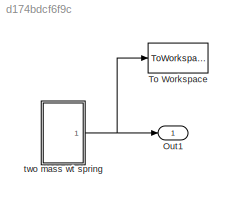
MODEL slx_d174bdcf6f9c
KIND model
CONFIG AbsTol = auto
CONFIG EnableMultiTasking = off
CONFIG FixedStep = auto
CONFIG MaxStep = auto
CONFIG MinStep = auto
CONFIG RelTol = 1e-3
CONFIG SampleTimeConstraint = Unconstrained
CONFIG Solver = VariableStepAuto
CONFIG SolverName = VariableStepAuto
CONFIG StartTime = 0.0
CONFIG StopTime = 100.0
BLOCK [Outport] Out1
  IconDisplay = Port number
BLOCK [ToWorkspace] To Workspace
  FixptAsFi = on
  MaxDataPoints = inf
  Ports = [1]
  SampleTime = -1
  Save2DSignal = 3-D array (concatenate along third dimension)
  SaveFormat = Timeseries
  VariableName = simout
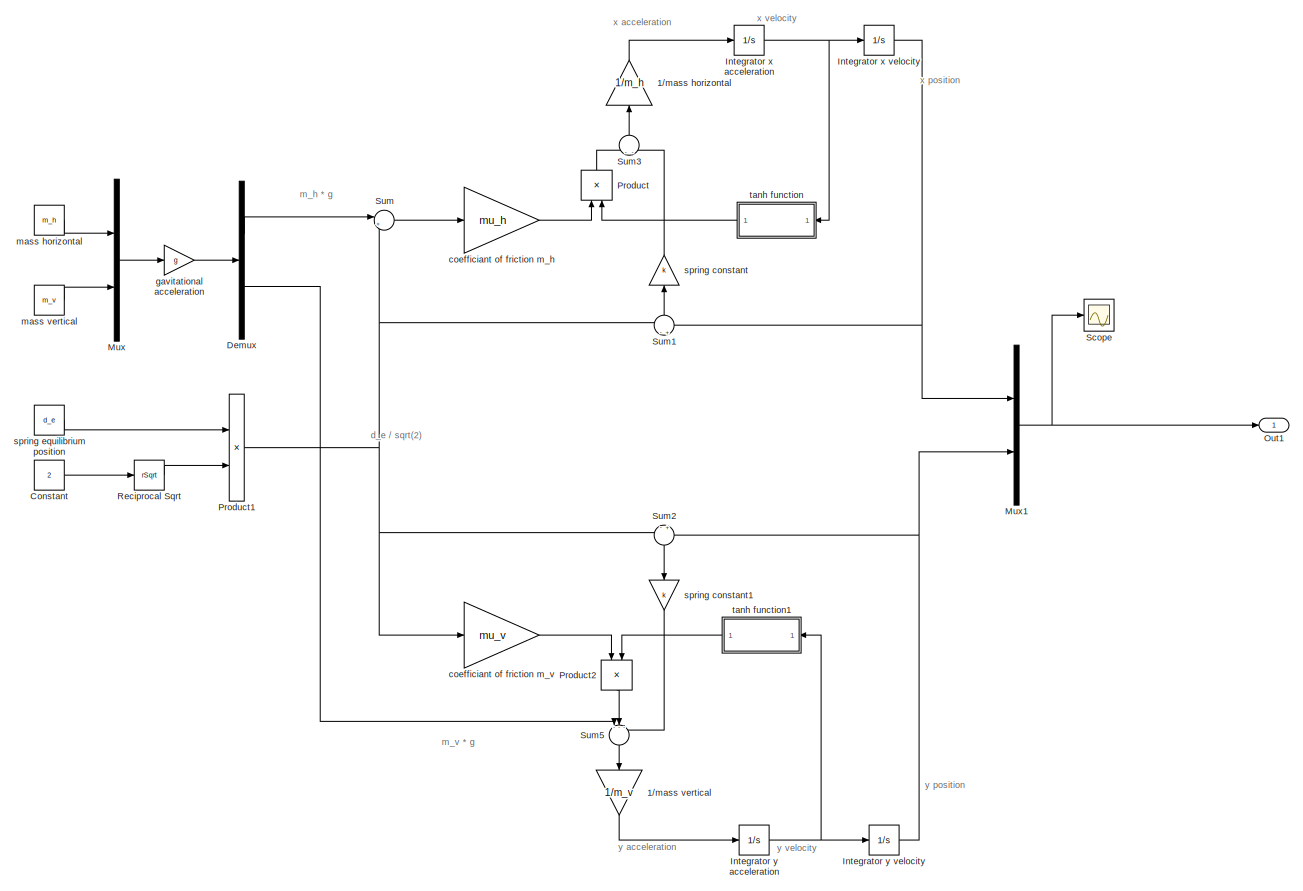
[diagram: two mass wt spring - part 1/1, most of the canvas]
BLOCK [SubSystem] two mass wt spring
  Ports = [0, 1]
  RequestExecContextInheritance = off
  Variant = off
BLOCK [Gain] two mass wt spring/ spring constant
  Gain = k
  OutDataTypeStr = Inherit: Inherit via internal rule
  ParamDataTypeStr = Inherit: Inherit via internal rule
  SaturateOnIntegerOverflow = off
BLOCK [Gain] two mass wt spring/ spring constant1
  Gain = k
  OutDataTypeStr = Inherit: Inherit via internal rule
  ParamDataTypeStr = Inherit: Inherit via internal rule
  SaturateOnIntegerOverflow = off
BLOCK [Gain] two mass wt spring/1//mass horizontal
  Gain = 1/m_h
  OutDataTypeStr = Inherit: Inherit via internal rule
  ParamDataTypeStr = Inherit: Inherit via internal rule
  SaturateOnIntegerOverflow = off
BLOCK [Gain] two mass wt spring/1//mass vertical
  Gain = 1/m_v
  OutDataTypeStr = Inherit: Inherit via internal rule
  ParamDataTypeStr = Inherit: Inherit via internal rule
  SaturateOnIntegerOverflow = off
BLOCK [Constant] two mass wt spring/Constant
  Value = 2
BLOCK [Demux] two mass wt spring/Demux
  DisplayOption = bar
  Outputs = 2
  Ports = [1, 2]
BLOCK [Integrator] two mass wt spring/Integrator x acceleration
  Ports = [1, 1]
BLOCK [Integrator] two mass wt spring/Integrator x velocity
  Ports = [1, 1]
BLOCK [Integrator] two mass wt spring/Integrator y acceleration
  Ports = [1, 1]
BLOCK [Integrator] two mass wt spring/Integrator y velocity
  Ports = [1, 1]
BLOCK [Mux] two mass wt spring/Mux
  DisplayOption = bar
  Inputs = 2
  Ports = [2, 1]
BLOCK [Mux] two mass wt spring/Mux1
  DisplayOption = bar
  Inputs = 2
  Ports = [2, 1]
BLOCK [Outport] two mass wt spring/Out1
  IconDisplay = Port number
BLOCK [Product] two mass wt spring/Product
  InputSameDT = off
  OutDataTypeStr = Inherit: Inherit via internal rule
  Ports = [2, 1]
  RndMeth = Floor
  SaturateOnIntegerOverflow = off
BLOCK [Product] two mass wt spring/Product1
  InputSameDT = off
  OutDataTypeStr = Inherit: Inherit via internal rule
  Ports = [2, 1]
  RndMeth = Floor
  SaturateOnIntegerOverflow = off
BLOCK [Product] two mass wt spring/Product2
  InputSameDT = off
  OutDataTypeStr = Inherit: Inherit via internal rule
  Ports = [2, 1]
  RndMeth = Floor
  SaturateOnIntegerOverflow = off
BLOCK [Sqrt] two mass wt spring/Reciprocal Sqrt
  Operator = rSqrt
BLOCK [Scope] two mass wt spring/Scope
  NumInputPorts = 1
  Ports = [1]
  ScopeSpecificationString = Simulink.scopes.TimeScopeBlockCfg('CurrentConfiguration', extmgr.ConfigurationSet(extmgr.Configuration('Core','General UI',true),extmgr.Configuration('Core','Source UI',true),extmgr.Configuration('Sources','WiredSimulink',true,'DataLoggingLimitDataPoints',true,'DataLoggingSaveFormat','Array','DataLoggingDecimation','1','DataLoggingDecimateData',true),extmgr.Configuration('Visuals','Time Domain',tr...<+1519ch>
BLOCK [Sum] two mass wt spring/Sum
  IconShape = round
  InputSameDT = off
  Inputs = |++
  OutDataTypeStr = Inherit: Inherit via internal rule
  Ports = [2, 1]
  SaturateOnIntegerOverflow = off
BLOCK [Sum] two mass wt spring/Sum1
  IconShape = round
  InputSameDT = off
  Inputs = -+
  OutDataTypeStr = Inherit: Inherit via internal rule
  Ports = [2, 1]
  SaturateOnIntegerOverflow = off
BLOCK [Sum] two mass wt spring/Sum2
  IconShape = round
  InputSameDT = off
  Inputs = -+
  OutDataTypeStr = Inherit: Inherit via internal rule
  Ports = [2, 1]
  SaturateOnIntegerOverflow = off
BLOCK [Sum] two mass wt spring/Sum3
  IconShape = round
  InputSameDT = off
  Inputs = --
  OutDataTypeStr = Inherit: Inherit via internal rule
  Ports = [2, 1]
  SaturateOnIntegerOverflow = off
BLOCK [Sum] two mass wt spring/Sum5
  IconShape = round
  InputSameDT = off
  Inputs = ---
  OutDataTypeStr = Inherit: Inherit via internal rule
  Ports = [3, 1]
  SaturateOnIntegerOverflow = off
BLOCK [Gain] two mass wt spring/coefficiant of friction m_h 
  Gain = mu_h
  OutDataTypeStr = Inherit: Inherit via internal rule
  ParamDataTypeStr = Inherit: Inherit via internal rule
  SaturateOnIntegerOverflow = off
BLOCK [Gain] two mass wt spring/coefficiant of friction m_v
  Gain = mu_v
  OutDataTypeStr = Inherit: Inherit via internal rule
  ParamDataTypeStr = Inherit: Inherit via internal rule
  SaturateOnIntegerOverflow = off
BLOCK [Gain] two mass wt spring/gavitational acceleration
  Gain = g
  OutDataTypeStr = Inherit: Inherit via internal rule
  ParamDataTypeStr = Inherit: Inherit via internal rule
  SaturateOnIntegerOverflow = off
BLOCK [Constant] two mass wt spring/mass horizontal 
  Value = m_h
BLOCK [Constant] two mass wt spring/mass vertical
  Value = m_v
BLOCK [Constant] two mass wt spring/spring equilibrium position
  Value = d_e
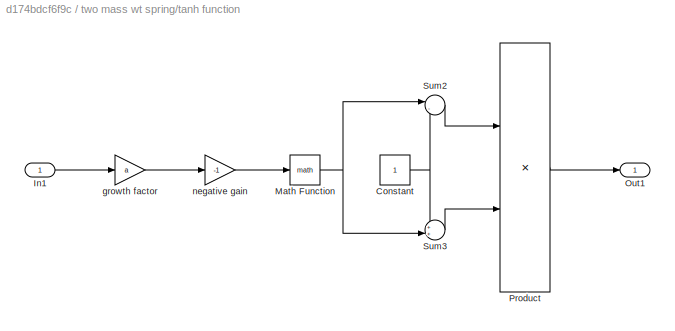
BLOCK [SubSystem] two mass wt spring/tanh function
  Ports = [1, 1]
  RequestExecContextInheritance = off
  Variant = off
BLOCK [Constant] two mass wt spring/tanh function/Constant
BLOCK [Inport] two mass wt spring/tanh function/In1
  IconDisplay = Port number
BLOCK [Math] two mass wt spring/tanh function/Math Function
  Ports = [1, 1]
BLOCK [Outport] two mass wt spring/tanh function/Out1
  IconDisplay = Port number
BLOCK [Product] two mass wt spring/tanh function/Product
  InputSameDT = off
  Inputs = */
  OutDataTypeStr = Inherit: Inherit via internal rule
  Ports = [2, 1]
  RndMeth = Floor
  SaturateOnIntegerOverflow = off
BLOCK [Sum] two mass wt spring/tanh function/Sum2
  IconShape = round
  InputSameDT = off
  Inputs = |-+
  OutDataTypeStr = Inherit: Inherit via internal rule
  Ports = [2, 1]
  SaturateOnIntegerOverflow = off
BLOCK [Sum] two mass wt spring/tanh function/Sum3
  IconShape = round
  InputSameDT = off
  Inputs = ++|
  OutDataTypeStr = Inherit: Inherit via internal rule
  Ports = [2, 1]
  SaturateOnIntegerOverflow = off
BLOCK [Gain] two mass wt spring/tanh function/growth factor
  Gain = a
  OutDataTypeStr = Inherit: Inherit via internal rule
  ParamDataTypeStr = Inherit: Inherit via internal rule
  SaturateOnIntegerOverflow = off
BLOCK [Gain] two mass wt spring/tanh function/negative gain
  Gain = -1
  OutDataTypeStr = Inherit: Inherit via internal rule
  ParamDataTypeStr = Inherit: Inherit via internal rule
  SaturateOnIntegerOverflow = off
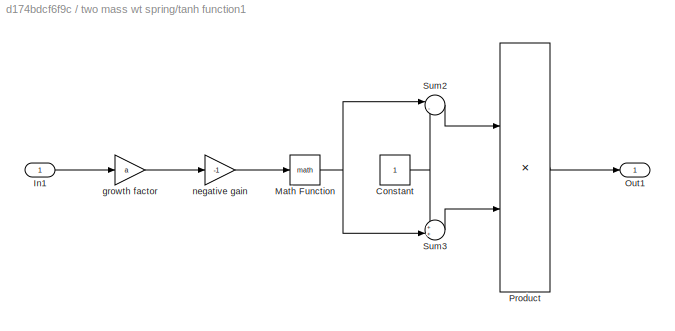
BLOCK [SubSystem] two mass wt spring/tanh function1
  Ports = [1, 1]
  RequestExecContextInheritance = off
  Variant = off
BLOCK [Constant] two mass wt spring/tanh function1/Constant
BLOCK [Inport] two mass wt spring/tanh function1/In1
  IconDisplay = Port number
BLOCK [Math] two mass wt spring/tanh function1/Math Function
  Ports = [1, 1]
BLOCK [Outport] two mass wt spring/tanh function1/Out1
  IconDisplay = Port number
BLOCK [Product] two mass wt spring/tanh function1/Product
  InputSameDT = off
  Inputs = */
  OutDataTypeStr = Inherit: Inherit via internal rule
  Ports = [2, 1]
  RndMeth = Floor
  SaturateOnIntegerOverflow = off
BLOCK [Sum] two mass wt spring/tanh function1/Sum2
  IconShape = round
  InputSameDT = off
  Inputs = |-+
  OutDataTypeStr = Inherit: Inherit via internal rule
  Ports = [2, 1]
  SaturateOnIntegerOverflow = off
BLOCK [Sum] two mass wt spring/tanh function1/Sum3
  IconShape = round
  InputSameDT = off
  Inputs = ++|
  OutDataTypeStr = Inherit: Inherit via internal rule
  Ports = [2, 1]
  SaturateOnIntegerOverflow = off
BLOCK [Gain] two mass wt spring/tanh function1/growth factor
  Gain = a
  OutDataTypeStr = Inherit: Inherit via internal rule
  ParamDataTypeStr = Inherit: Inherit via internal rule
  SaturateOnIntegerOverflow = off
BLOCK [Gain] two mass wt spring/tanh function1/negative gain
  Gain = -1
  OutDataTypeStr = Inherit: Inherit via internal rule
  ParamDataTypeStr = Inherit: Inherit via internal rule
  SaturateOnIntegerOverflow = off
ANNOTATION two mass wt spring: d_e / sqrt(2)
ANNOTATION two mass wt spring: m_h * g
ANNOTATION two mass wt spring: m_v * g
ANNOTATION two mass wt spring: x acceleration
ANNOTATION two mass wt spring: x position
ANNOTATION two mass wt spring: x velocity
ANNOTATION two mass wt spring: y acceleration
ANNOTATION two mass wt spring: y position
ANNOTATION two mass wt spring: y velocity
LINE two mass wt spring/ spring constant1:1 -> two mass wt spring/Sum5:3
LINE two mass wt spring/ spring constant:1 -> two mass wt spring/Sum3:2
LINE two mass wt spring/1//mass horizontal:1 -> two mass wt spring/Integrator x acceleration:1
LINE two mass wt spring/1//mass vertical:1 -> two mass wt spring/Integrator y acceleration:1
LINE two mass wt spring/Constant:1 -> two mass wt spring/Reciprocal Sqrt:1
LINE two mass wt spring/Demux:1 -> two mass wt spring/Sum:1
LINE two mass wt spring/Demux:2 -> two mass wt spring/Sum5:1
NET two mass wt spring/Integrator x acceleration:1 -> two mass wt spring/Integrator x velocity:1, two mass wt spring/tanh function:1
NET two mass wt spring/Integrator x velocity:1 -> two mass wt spring/Mux1:1, two mass wt spring/Sum1:2
NET two mass wt spring/Integrator y acceleration:1 -> two mass wt spring/Integrator y velocity:1, two mass wt spring/tanh function1:1
NET two mass wt spring/Integrator y velocity:1 -> two mass wt spring/Mux1:2, two mass wt spring/Sum2:2
NET two mass wt spring/Mux1:1 -> two mass wt spring/Out1:1, two mass wt spring/Scope:1
LINE two mass wt spring/Mux:1 -> two mass wt spring/gavitational acceleration:1
NET two mass wt spring/Product1:1 -> two mass wt spring/Sum1:1, two mass wt spring/Sum2:1, two mass wt spring/Sum:2, two mass wt spring/coefficiant of friction m_v:1
LINE two mass wt spring/Product2:1 -> two mass wt spring/Sum5:2
LINE two mass wt spring/Product:1 -> two mass wt spring/Sum3:1
LINE two mass wt spring/Reciprocal Sqrt:1 -> two mass wt spring/Product1:2
LINE two mass wt spring/Sum1:1 -> two mass wt spring/ spring constant:1
LINE two mass wt spring/Sum2:1 -> two mass wt spring/ spring constant1:1
LINE two mass wt spring/Sum3:1 -> two mass wt spring/1//mass horizontal:1
LINE two mass wt spring/Sum5:1 -> two mass wt spring/1//mass vertical:1
LINE two mass wt spring/Sum:1 -> two mass wt spring/coefficiant of friction m_h :1
LINE two mass wt spring/coefficiant of friction m_h :1 -> two mass wt spring/Product:1
LINE two mass wt spring/coefficiant of friction m_v:1 -> two mass wt spring/Product2:1
LINE two mass wt spring/gavitational acceleration:1 -> two mass wt spring/Demux:1
LINE two mass wt spring/mass horizontal :1 -> two mass wt spring/Mux:1
LINE two mass wt spring/mass vertical:1 -> two mass wt spring/Mux:2
LINE two mass wt spring/spring equilibrium position:1 -> two mass wt spring/Product1:1
NET two mass wt spring/tanh function/Constant:1 -> two mass wt spring/tanh function/Sum2:2, two mass wt spring/tanh function/Sum3:1
LINE two mass wt spring/tanh function/In1:1 -> two mass wt spring/tanh function/growth factor:1
NET two mass wt spring/tanh function/Math Function:1 -> two mass wt spring/tanh function/Sum2:1, two mass wt spring/tanh function/Sum3:2
LINE two mass wt spring/tanh function/Product:1 -> two mass wt spring/tanh function/Out1:1
LINE two mass wt spring/tanh function/Sum2:1 -> two mass wt spring/tanh function/Product:1
LINE two mass wt spring/tanh function/Sum3:1 -> two mass wt spring/tanh function/Product:2
LINE two mass wt spring/tanh function/growth factor:1 -> two mass wt spring/tanh function/negative gain:1
LINE two mass wt spring/tanh function/negative gain:1 -> two mass wt spring/tanh function/Math Function:1
NET two mass wt spring/tanh function1/Constant:1 -> two mass wt spring/tanh function1/Sum2:2, two mass wt spring/tanh function1/Sum3:1
LINE two mass wt spring/tanh function1/In1:1 -> two mass wt spring/tanh function1/growth factor:1
NET two mass wt spring/tanh function1/Math Function:1 -> two mass wt spring/tanh function1/Sum2:1, two mass wt spring/tanh function1/Sum3:2
LINE two mass wt spring/tanh function1/Product:1 -> two mass wt spring/tanh function1/Out1:1
LINE two mass wt spring/tanh function1/Sum2:1 -> two mass wt spring/tanh function1/Product:1
LINE two mass wt spring/tanh function1/Sum3:1 -> two mass wt spring/tanh function1/Product:2
LINE two mass wt spring/tanh function1/growth factor:1 -> two mass wt spring/tanh function1/negative gain:1
LINE two mass wt spring/tanh function1/negative gain:1 -> two mass wt spring/tanh function1/Math Function:1
LINE two mass wt spring/tanh function1:1 -> two mass wt spring/Product2:2
LINE two mass wt spring/tanh function:1 -> two mass wt spring/Product:2
NET two mass wt spring:1 -> Out1:1, To Workspace:1
note: NET lines group one-source signal fan-out (src -> all destinations, sorted); 1:1 wires keep LINE
